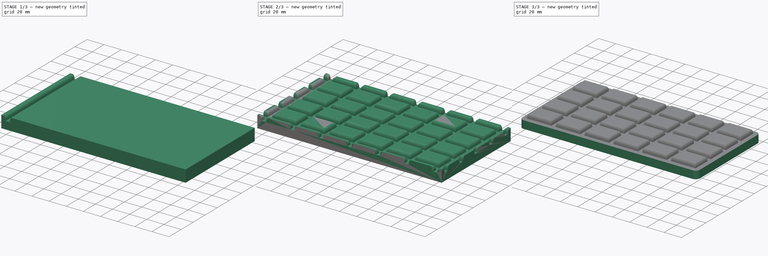
[diagram: build sequence overview — one tinted view per stage of 3, left to right]
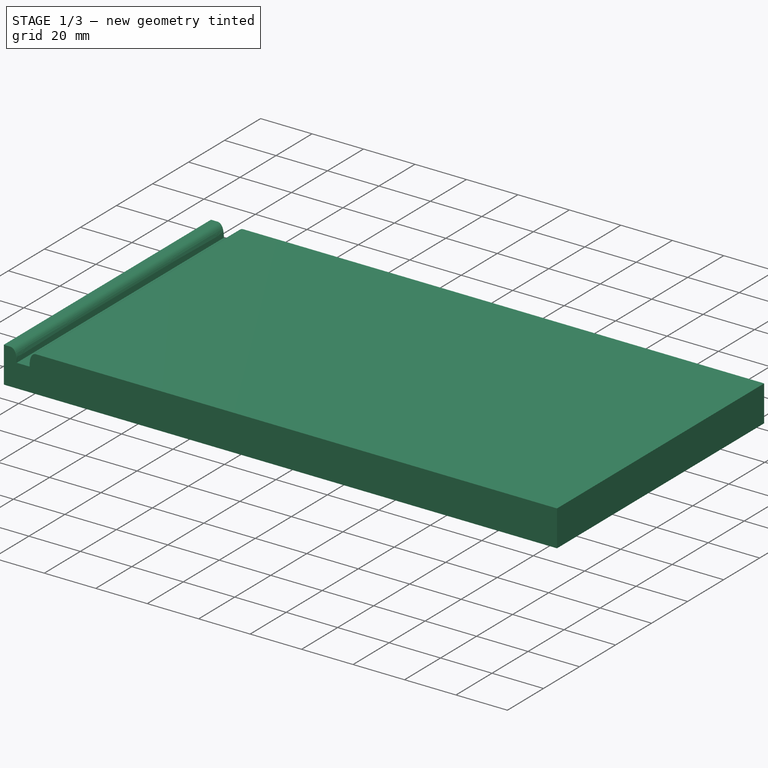
[diagram: stage 1 of 3 — iso view after this stage's code; geometry added in this stage tinted green]
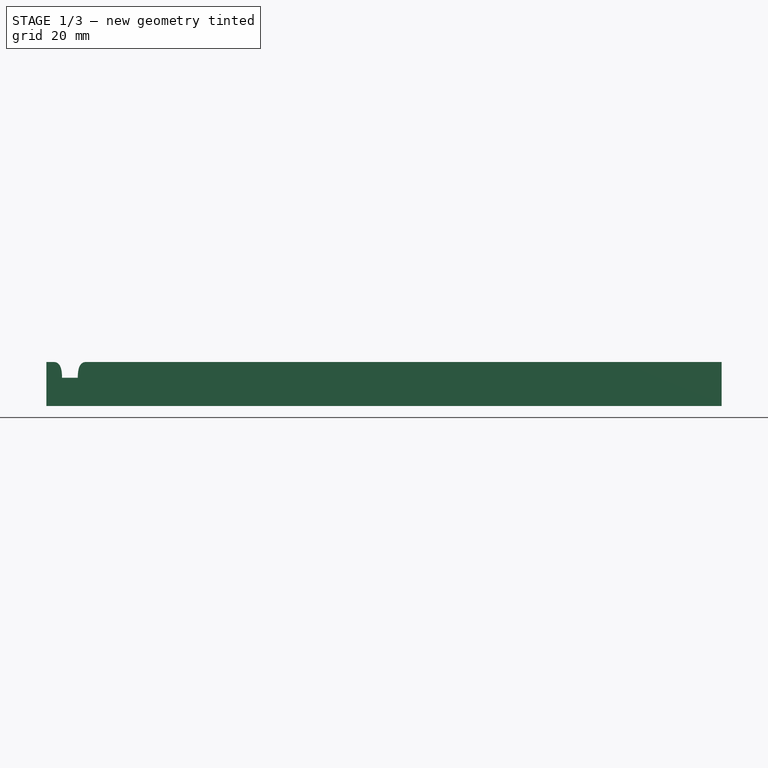
[diagram: stage 1 of 3 — front view after this stage's code; geometry added in this stage tinted green]
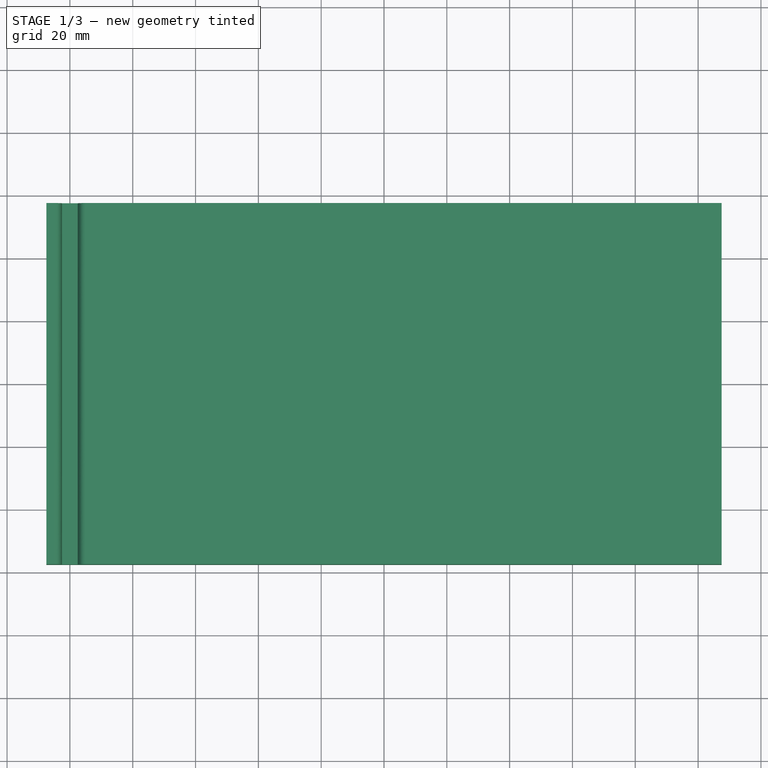
[diagram: stage 1 of 3 — top view after this stage's code; geometry added in this stage tinted green]
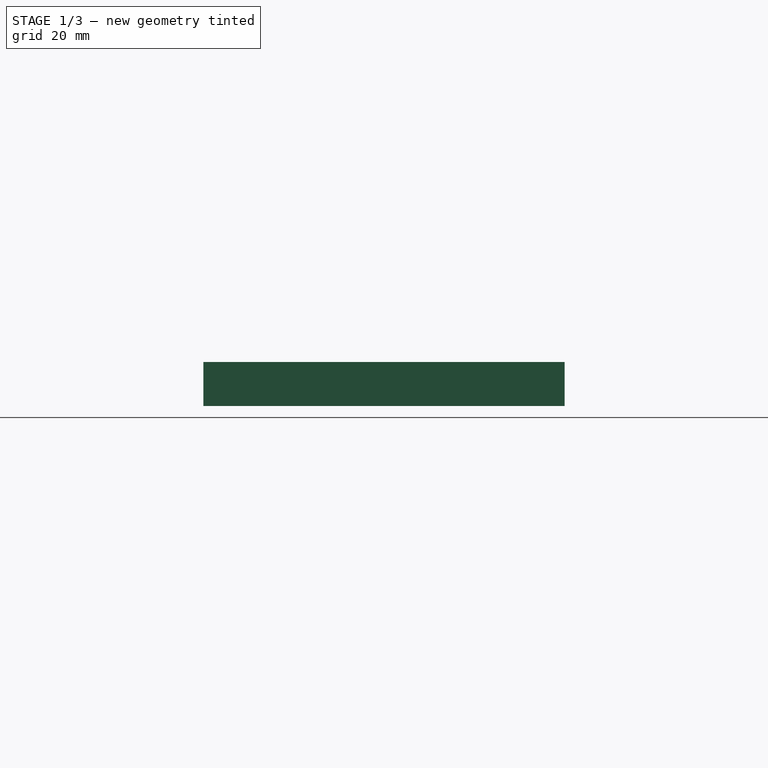
[diagram: stage 1 of 3 — right view after this stage's code; geometry added in this stage tinted green]
FCSTD DOCUMENT  (FreeCAD 0.21R33771 (Git))
Label: parametric_chocolate_bar
License: All rights reserved
LicenseURL: https://en.wikipedia.org/wiki/All_rights_reserved
objects: Sketcher::SketchObject×4, PartDesign::Pocket×3, PartDesign::LinearPattern×2, Spreadsheet::Sheet×1, PartDesign::Pad×1, PartDesign::Fillet×1, PartDesign::Body×1
note: 17 computed .brp shape members not serialized (recipe doc carries the construction recipe); baked Part::Feature solids carry a one-line shape summary decoded from their .brp

FEATURE [Spreadsheet::Sheet] Spreadsheet  label="$params"
  cells = A1='name; B1='value; A2='width; B2(width)=100; A3='length; B3(length)=200; A4='depth; B4(depth)=14; A5='offset_sides; B5(offset_sides)=5; A6='gap_depth; B6(gap_depth)=5; A7='gap_rounding_dist; B7(gap_rounding_distance)=0.1; A8='gap_distance; B8(gap_distance)=5; A9='inset_depth; B9(inset_depth)=2; A10='pieces_y; B10(pieces_x)=6; A11='pieces_x; B11(pieces_y)=4
FEATURE [Sketcher::SketchObject] Sketch  label="MainBody Base Pad Sketch"
  FullyConstrained = true
  MapMode = 5
  Support = -> [XY_Plane]
  expr: Constraints[10] = <<$params>>.length + (<<$params>>.offset_sides + <<$params>>.gap_distance / 2) * 2
  expr: Constraints[9] = <<$params>>.width + (<<$params>>.offset_sides + <<$params>>.gap_distance / 2) * 2
  sketch-geometry (4):
    g0: LineSegment StartX=-107.5 StartY=-57.5 StartZ=0 EndX=107.5 EndY=-57.5 EndZ=0
    g1: LineSegment StartX=107.5 StartY=-57.5 StartZ=0 EndX=107.5 EndY=57.5 EndZ=0
    g2: LineSegment StartX=107.5 StartY=57.5 StartZ=0 EndX=-107.5 EndY=57.5 EndZ=0
    g3: LineSegment StartX=-107.5 StartY=57.5 StartZ=0 EndX=-107.5 EndY=-57.5 EndZ=0
  constraints (11):
    c: Coincident(g0,g1)
    c: Coincident(g1,g2)
    c: Coincident(g2,g3)
    c: Coincident(g3,g0)
    c: Horizontal(g0)
    c: Horizontal(g2)
    c: Vertical(g1)
    c: Vertical(g3)
    c: Symmetric(g1,g0,g-1)
    c: DistanceY(g3,g3) = 115
    c: DistanceX(g2,g2) = 215
FEATURE [PartDesign::Pad] Pad  label="MainBody Base Pad"
  Direction = (0,0,1)
  Length = 14
  Length2 = 10
  Profile = -> Sketch
  ReferenceAxis = -> Sketch [N_Axis]
  Type = 0
  expr: Length = <<$params>>.depth
FEATURE [Sketcher::SketchObject] Sketch001  label="MainBody Horizontal Cut Sketch"
  FullyConstrained = false
  MapMode = 5
  Placement = pos=(0,-57.5,0) rot=(1,0,0;1.5708rad)
  Support = -> [Pad]
  expr: Constraints[12] = <<$params>>.gap_distance
  expr: Constraints[40] = <<$params>>.gap_rounding_distance
  expr: Constraints[47] = <<$params>>.depth
  expr: Constraints[48] = <<$params>>.length / 2
  expr: Constraints[6] = Spreadsheet.gap_depth
  sketch-geometry (22):
    g0: LineSegment StartX=-100 StartY=14 StartZ=0 EndX=-100 EndY=9 EndZ=0
    g1: LineSegment StartX=-100 StartY=14 StartZ=0 EndX=-95 EndY=14 EndZ=0
    g2: LineSegment StartX=-100 StartY=14 StartZ=0 EndX=-105 EndY=14 EndZ=0
    g3: LineSegment StartX=-100 StartY=9 StartZ=0 EndX=-97.5 EndY=9 EndZ=0
    g4: LineSegment StartX=-100 StartY=9 StartZ=0 EndX=-102.5 EndY=9 EndZ=0
    g5: Circle CenterX=-102.5 CenterY=9 CenterZ=0 NormalX=0 NormalY=0 NormalZ=1 AngleXU=0 Radius=1
    g6: Circle CenterX=-102.5 CenterY=13.9 CenterZ=0 NormalX=0 NormalY=0 NormalZ=1 AngleXU=0 Radius=1
    g7: Circle CenterX=-105 CenterY=14 CenterZ=0 NormalX=0 NormalY=0 NormalZ=1 AngleXU=0 Radius=1
    g8: BSplineCurve PolesCount=3 KnotsCount=2 Degree=2 IsPeriodic=0
    g9: GeomPoint X=-102.5 Y=9 Z=0
    g10: GeomPoint X=-105 Y=14 Z=0
    g11: Circle CenterX=-97.5 CenterY=9 CenterZ=0 NormalX=0 NormalY=0 NormalZ=1 AngleXU=0 Radius=1
    g12: Circle CenterX=-97.5 CenterY=13.9 CenterZ=0 NormalX=0 NormalY=0 NormalZ=1 AngleXU=0 Radius=1
    g13: Circle CenterX=-95 CenterY=14 CenterZ=0 NormalX=0 NormalY=0 NormalZ=1 AngleXU=0 Radius=1
    g14: BSplineCurve PolesCount=3 KnotsCount=2 Degree=2 IsPeriodic=0
    g15: GeomPoint X=-97.5 Y=9 Z=0
    g16: GeomPoint X=-95 Y=14 Z=0
    g17: GeomPoint X=-100 Y=13.9 Z=0
    g18: LineSegment StartX=-100 StartY=13.9 StartZ=0 EndX=-102.5 EndY=13.9 EndZ=0
    g19: LineSegment StartX=-97.5 StartY=13.9 StartZ=0 EndX=-100 EndY=13.9 EndZ=0
    g20: LineSegment StartX=0 StartY=0 StartZ=0 EndX=-100 EndY=0 EndZ=0
    g21: LineSegment StartX=-100 StartY=0 StartZ=0 EndX=-100 EndY=14 EndZ=0
  constraints (49):
    c: Vertical(g0)
    c: Horizontal(g1)
    c: Coincident(g2,g0)
    c: Horizontal(g2)
    c: Equal(g0,g1)
    c: Equal(g1,g2)
    c: DistanceY(g0,g0) = 5
    c: Coincident(g3,g0)
    c: Horizontal(g3)
    c: Coincident(g4,g0)
    c: Horizontal(g4)
    c: Equal(g4,g3)
    c: DistanceX(g4,g3) = 5
    c: Coincident(g8,g4)
    c: Equal(g5,g6)
    c: Equal(g5,g7)
    c: Coincident(g8,g2)
    c: InternalAlignment(g5,g8)
    c: InternalAlignment(g6,g8)
    c: InternalAlignment(g7,g8)
    c: InternalAlignment(g9,g8)
    c: InternalAlignment(g10,g8)
    c: Coincident(g14,g3)
    c: Equal(g11,g12)
    c: Equal(g11,g13)
    c: Coincident(g14,g1)
    c: InternalAlignment(g11,g14)
    c: InternalAlignment(g12,g14)
    c: InternalAlignment(g13,g14)
    c: InternalAlignment(g15,g14)
    c: InternalAlignment(g16,g14)
    c: PointOnObject(g17,g0)
    c: Coincident(g18,g17)
    c: Coincident(g18,g6)
    c: Horizontal(g18)
    c: Coincident(g19,g12)
    c: Coincident(g19,g17)
    c: Horizontal(g19)
    c: Equal(g18,g4)
    c: Equal(g19,g3)
    c: DistanceY(g17,g1) = 0.1
    c: Coincident(g2,g1)
    c: Coincident(g20,g-1)
    c: Horizontal(g20)
    c: Coincident(g21,g20)
    c: Coincident(g21,g1)
    c: Vertical(g21)
    c: DistanceY(g21,g21) = 14
    c: DistanceX(g20,g20) = 100
FEATURE [PartDesign::Pocket] Pocket  label="MainBody Horizontal Cut"
  BaseFeature = -> Pad
  Direction = (0,1,-2e-16)
  Length = 5
  Length2 = 5
  Profile = -> Sketch001
  ReferenceAxis = -> Sketch001 [N_Axis]
  Refine = true
  Type = 2
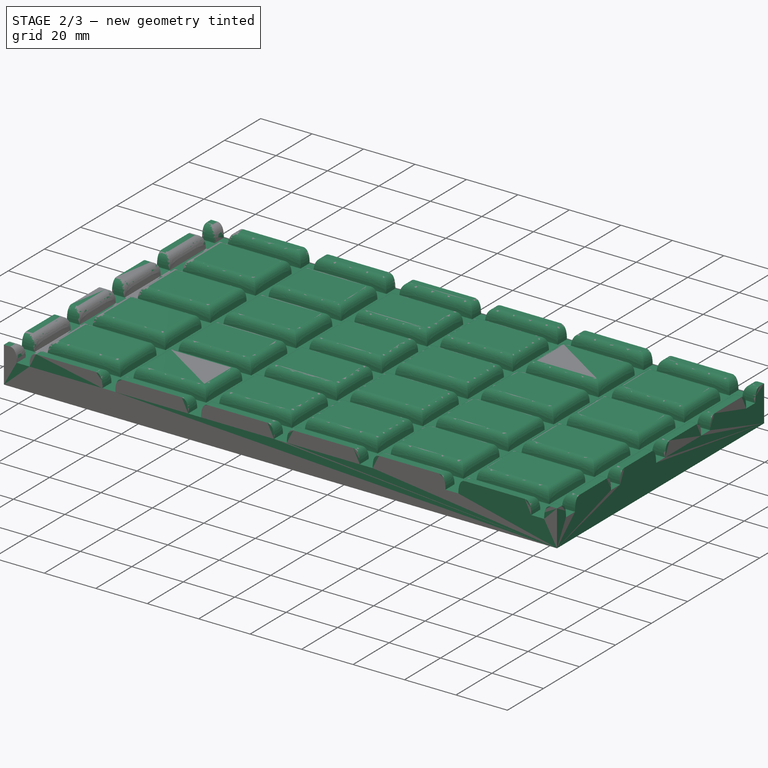
[diagram: stage 2 of 3 — iso view after this stage's code; geometry added in this stage tinted green]
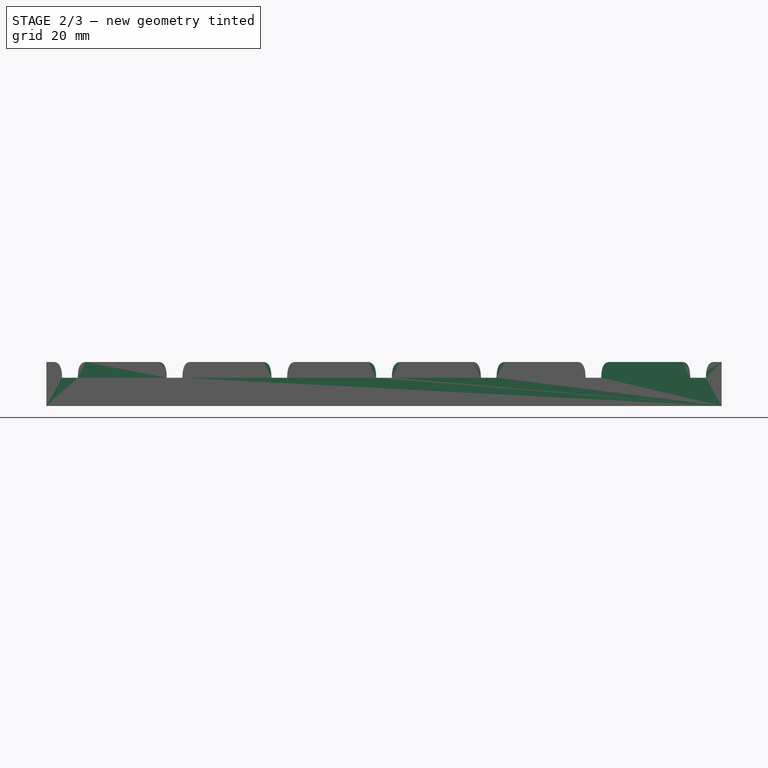
[diagram: stage 2 of 3 — front view after this stage's code; geometry added in this stage tinted green]
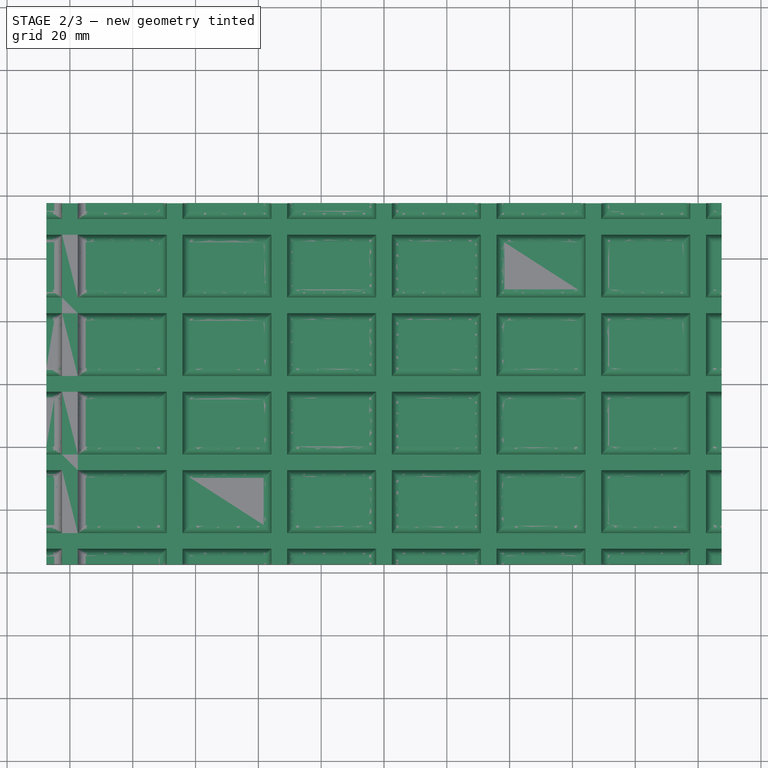
[diagram: stage 2 of 3 — top view after this stage's code; geometry added in this stage tinted green]
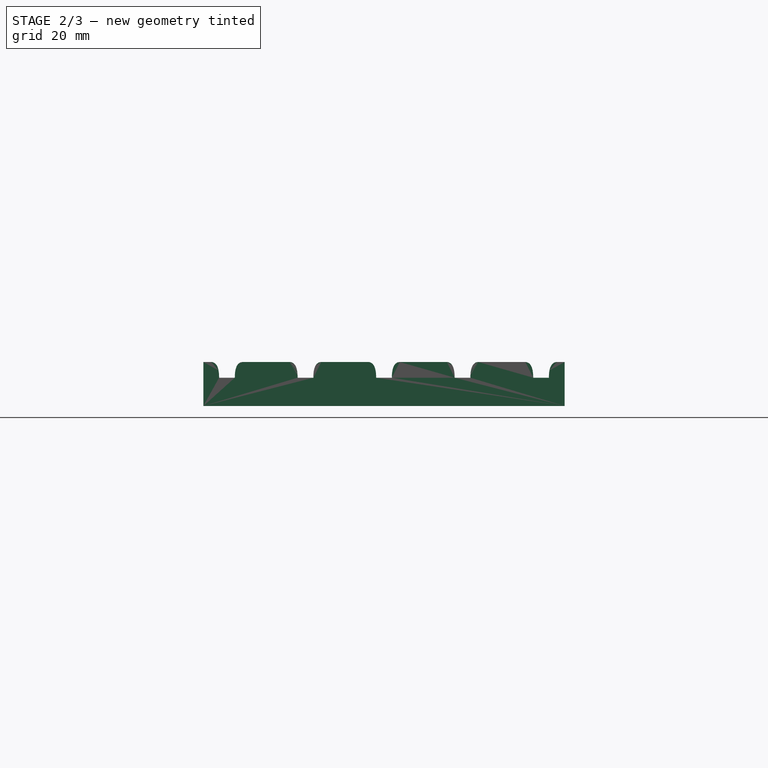
[diagram: stage 2 of 3 — right view after this stage's code; geometry added in this stage tinted green]
FEATURE [PartDesign::LinearPattern] LinearPattern  label="MainBody Horizontal Cut Repeater"
  BaseFeature = -> Pocket
  Direction = -> Sketch001 [H_Axis]
  Length = 200
  Occurrences = 7
  Originals = -> [Pocket]
  expr: Length = <<$params>>.length
  expr: Occurrences = <<$params>>.pieces_x + 1
FEATURE [Sketcher::SketchObject] Sketch002  label="MainBody Vertical Cut Sketch"
  FullyConstrained = true
  MapMode = 5
  Placement = pos=(107.5,0,0) rot=(0.57735,0.57735,0.57735;2.0944rad)
  Support = -> [LinearPattern]
  expr: Constraints[38] = <<$params>>.gap_distance
  expr: Constraints[39] = <<$params>>.gap_rounding_distance
  expr: Constraints[46] = <<$params>>.gap_distance
  expr: Constraints[47] = <<$params>>.gap_distance
  expr: Constraints[4] = <<$params>>.width / 2
  expr: Constraints[5] = <<$params>>.depth
  sketch-geometry (20):
    g0: LineSegment StartX=0 StartY=0 StartZ=0 EndX=-50 EndY=0 EndZ=0
    g1: LineSegment StartX=-50 StartY=0 StartZ=0 EndX=-50 EndY=14 EndZ=0
    g2: LineSegment StartX=-50 StartY=9 StartZ=0 EndX=-52.5 EndY=9 EndZ=0
    g3: LineSegment StartX=-50 StartY=9 StartZ=0 EndX=-47.5 EndY=9 EndZ=0
    g4: Circle CenterX=-52.5 CenterY=9 CenterZ=0 NormalX=0 NormalY=0 NormalZ=1 AngleXU=0 Radius=1
    g5: Circle CenterX=-52.5 CenterY=13.9 CenterZ=0 NormalX=0 NormalY=0 NormalZ=1 AngleXU=0 Radius=1
    g6: Circle CenterX=-55 CenterY=14 CenterZ=0 NormalX=0 NormalY=0 NormalZ=1 AngleXU=0 Radius=1
    g7: BSplineCurve PolesCount=3 KnotsCount=2 Degree=2 IsPeriodic=0
    g8: GeomPoint X=-52.5 Y=9 Z=0
    g9: GeomPoint X=-55 Y=14 Z=0
    g10: Circle CenterX=-47.5 CenterY=9 CenterZ=0 NormalX=0 NormalY=0 NormalZ=1 AngleXU=0 Radius=1
    g11: Circle CenterX=-47.5 CenterY=13.9 CenterZ=0 NormalX=0 NormalY=0 NormalZ=1 AngleXU=0 Radius=1
    g12: Circle CenterX=-45 CenterY=14 CenterZ=0 NormalX=0 NormalY=0 NormalZ=1 AngleXU=0 Radius=1
    g13: BSplineCurve PolesCount=3 KnotsCount=2 Degree=2 IsPeriodic=0
    g14: GeomPoint X=-47.5 Y=9 Z=0
    g15: GeomPoint X=-45 Y=14 Z=0
    g16: LineSegment StartX=-55 StartY=14 StartZ=0 EndX=-50 EndY=14 EndZ=0
    g17: LineSegment StartX=-50 StartY=14 StartZ=0 EndX=-45 EndY=14 EndZ=0
    g18: LineSegment StartX=-47.5 StartY=13.9 StartZ=0 EndX=-50 EndY=13.9 EndZ=0
    g19: LineSegment StartX=-50 StartY=13.9 StartZ=0 EndX=-52.5 EndY=13.9 EndZ=0
  constraints (48):
    c: Coincident(g0,g-1)
    c: Horizontal(g0)
    c: Coincident(g1,g0)
    c: Vertical(g1)
    c: DistanceX(g0,g0) = 50
    c: DistanceY(g1,g1) = 14
    c: PointOnObject(g2,g1)
    c: Horizontal(g2)
    c: Coincident(g3,g2)
    c: Horizontal(g3)
    c: Weight(g4) = 1
    c: Coincident(g7,g2)
    c: Equal(g4,g5)
    c: Equal(g4,g6)
    c: InternalAlignment(g4,g7)
    c: InternalAlignment(g5,g7)
    c: InternalAlignment(g6,g7)
    c: InternalAlignment(g8,g7)
    c: InternalAlignment(g9,g7)
    c: Weight(g10) = 1
    c: Coincident(g13,g3)
    c: Equal(g10,g11)
    c: Equal(g10,g12)
    c: InternalAlignment(g10,g13)
    c: InternalAlignment(g11,g13)
    c: InternalAlignment(g12,g13)
    c: InternalAlignment(g14,g13)
    c: InternalAlignment(g15,g13)
    c: Coincident(g16,g6)
    c: Coincident(g16,g1)
    c: Coincident(g17,g16)
    c: Coincident(g17,g12)
    c: Horizontal(g16)
    c: Horizontal(g17)
    c: Coincident(g18,g11)
    c: PointOnObject(g18,g1)
    c: Horizontal(g18)
    c: Equal(g3,g2)
    c: DistanceX(g2,g3) = 5
    c: DistanceY(g18,g16) = 0.1
    c: Coincident(g19,g18)
    c: Coincident(g19,g5)
    c: Horizontal(g19)
    c: Equal(g19,g18)
    c: Equal(g19,g2)
    c: Equal(g17,g16)
    c: DistanceY(g2,g16) = 5
    c: DistanceX(g16,g16) = 5
FEATURE [PartDesign::Pocket] Pocket001  label="MainBody Vertical Cut"
  BaseFeature = -> LinearPattern
  Direction = (-1,0,0)
  Length = 5
  Length2 = 5
  Profile = -> Sketch002
  ReferenceAxis = -> Sketch002 [N_Axis]
  Refine = true
  Type = 1
FEATURE [PartDesign::LinearPattern] LinearPattern001  label="MainBody Vertical Cut Repeater"
  BaseFeature = -> Pocket001
  Direction = -> Sketch002 [H_Axis]
  Length = 100
  Occurrences = 5
  Originals = -> [Pocket001]
  Refine = true
  expr: Length = <<$params>>.width
  expr: Occurrences = <<$params>>.pieces_y + 1
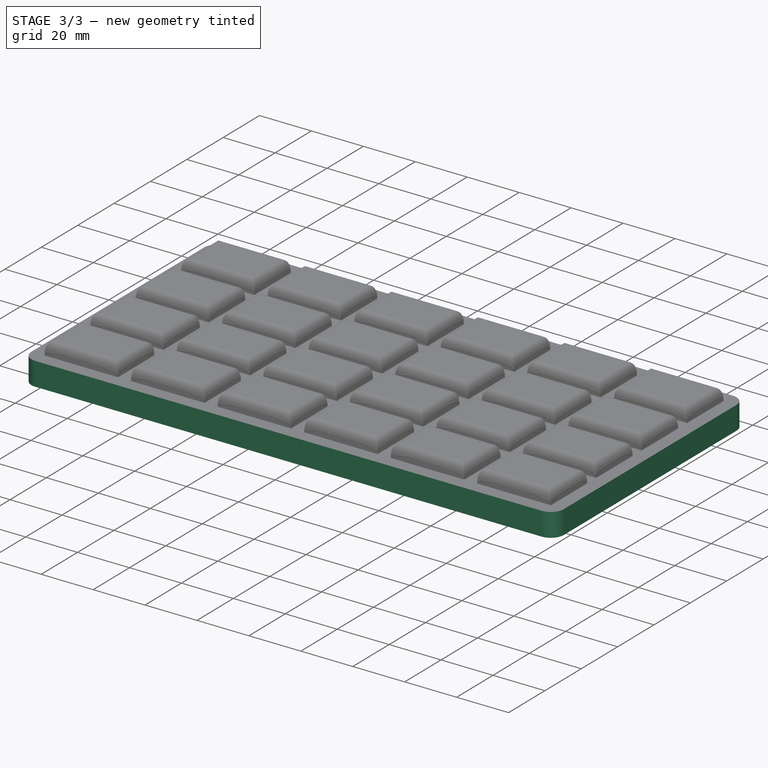
[diagram: stage 3 of 3 — iso view after this stage's code; geometry added in this stage tinted green]
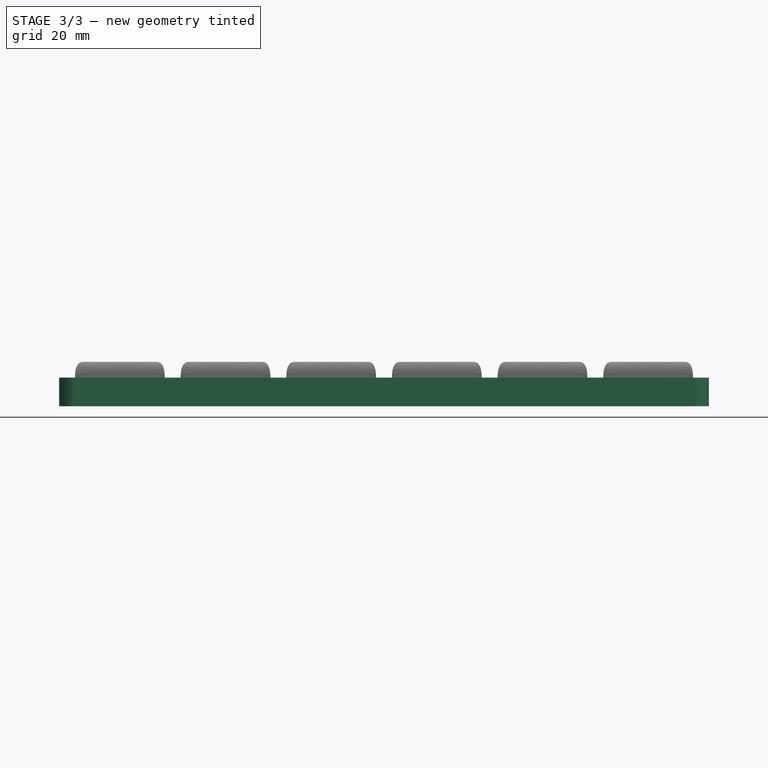
[diagram: stage 3 of 3 — front view after this stage's code; geometry added in this stage tinted green]
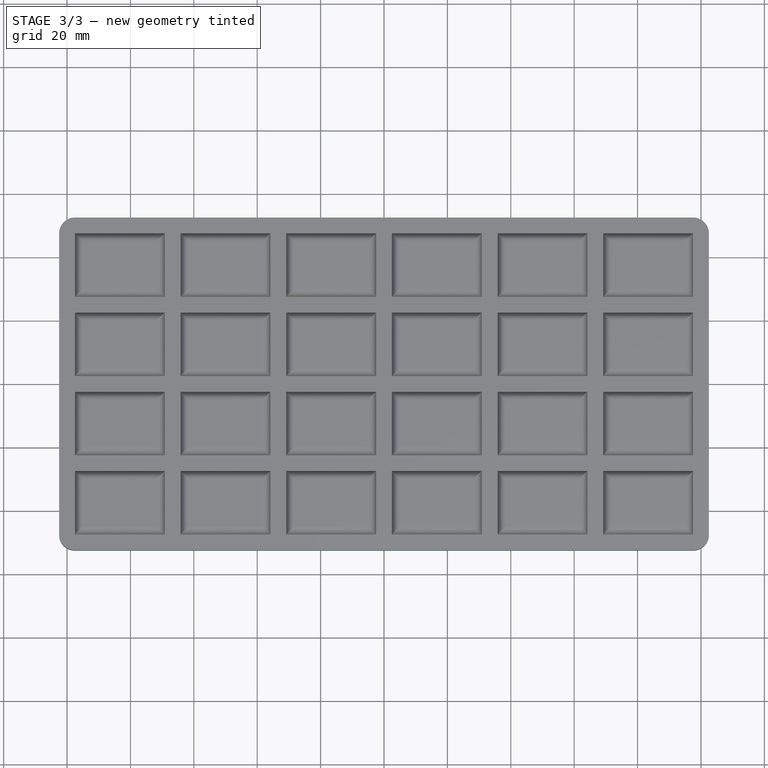
[diagram: stage 3 of 3 — top view after this stage's code; geometry added in this stage tinted green]
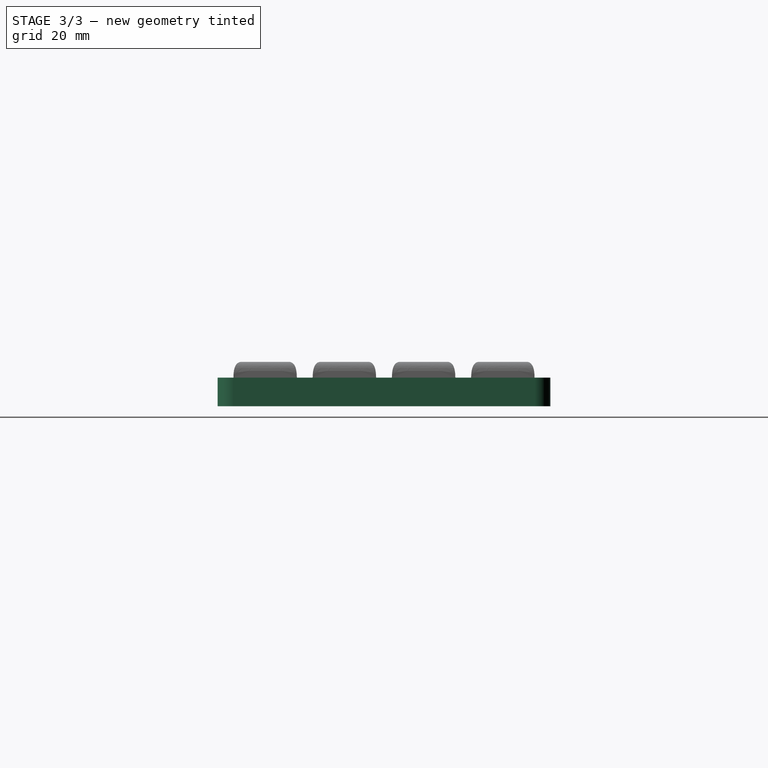
[diagram: stage 3 of 3 — right view after this stage's code; geometry added in this stage tinted green]
FEATURE [Sketcher::SketchObject] Sketch003  label="MainBody Gap Cut Sketch"
  ExternalGeometry = -> [Sketch]
  FullyConstrained = true
  MapMode = 5
  Placement = pos=(0,0,0) rot=(1,0,0;3.14159rad)
  Support = -> [Pad]
  expr: Constraints[10] = <<$params>>.length + <<$params>>.gap_distance
  expr: Constraints[9] = <<$params>>.width + <<$params>>.gap_distance
  sketch-geometry (8):
    g0: LineSegment StartX=-102.5 StartY=52.5 StartZ=0 EndX=102.5 EndY=52.5 EndZ=0
    g1: LineSegment StartX=102.5 StartY=52.5 StartZ=0 EndX=102.5 EndY=-52.5 EndZ=0
    g2: LineSegment StartX=102.5 StartY=-52.5 StartZ=0 EndX=-102.5 EndY=-52.5 EndZ=0
    g3: LineSegment StartX=-102.5 StartY=-52.5 StartZ=0 EndX=-102.5 EndY=52.5 EndZ=0
    g4: LineSegment StartX=-107.5 StartY=57.5 StartZ=0 EndX=107.5 EndY=57.5 EndZ=0
    g5: LineSegment StartX=107.5 StartY=57.5 StartZ=0 EndX=107.5 EndY=-57.5 EndZ=0
    g6: LineSegment StartX=107.5 StartY=-57.5 StartZ=0 EndX=-107.5 EndY=-57.5 EndZ=0
    g7: LineSegment StartX=-107.5 StartY=-57.5 StartZ=0 EndX=-107.5 EndY=57.5 EndZ=0
  constraints (21):
    c: Coincident(g0,g1)
    c: Coincident(g1,g2)
    c: Coincident(g2,g3)
    c: Coincident(g3,g0)
    c: Horizontal(g0)
    c: Horizontal(g2)
    c: Vertical(g1)
    c: Vertical(g3)
    c: Symmetric(g2,g0,g-1)
    c: DistanceY(g3,g3) = 105
    c: DistanceX(g0,g0) = 205
    c: Coincident(g4,g5)
    c: Coincident(g5,g6)
    c: Coincident(g6,g7)
    c: Coincident(g7,g4)
    c: Horizontal(g4)
    c: Horizontal(g6)
    c: Vertical(g5)
    c: Vertical(g7)
    c: Symmetric(g4,g5,g-1)
    c: Coincident(g-4,g5)
FEATURE [PartDesign::Pocket] Pocket002  label="MainBody Gap Cut"
  BaseFeature = -> LinearPattern001
  Direction = (0,0,1)
  Length = 5
  Length2 = 5
  Profile = -> Sketch003
  ReferenceAxis = -> Sketch003 [N_Axis]
  Type = 1
FEATURE [PartDesign::Fillet] Fillet
  Base = -> Pocket002 [Edge39,Edge5,Edge15,Edge29]
  BaseFeature = -> Pocket002
  Radius = 5
  SupportTransform = false
  UseAllEdges = false
FEATURE [PartDesign::Body] Body  label="MainBody"
  Group = -> [Sketch,Pad,Sketch001,Pocket,LinearPattern,Sketch002,Pocket001,LinearPattern001,Sketch003,Pocket002,Fillet]
  Origin = -> Origin
  Tip = -> Fillet
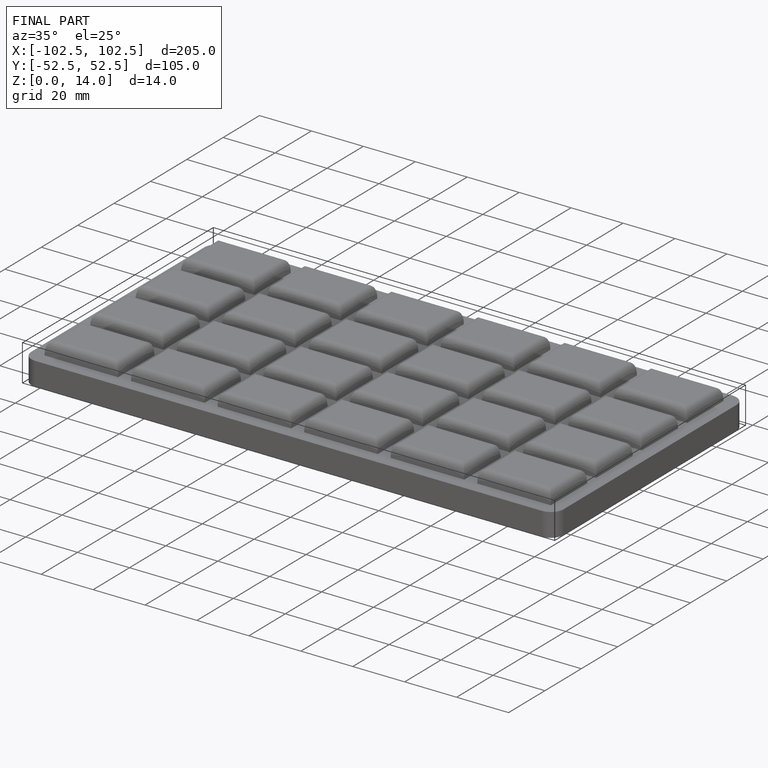
[diagram: finished part — iso view with bounding-box wireframe]
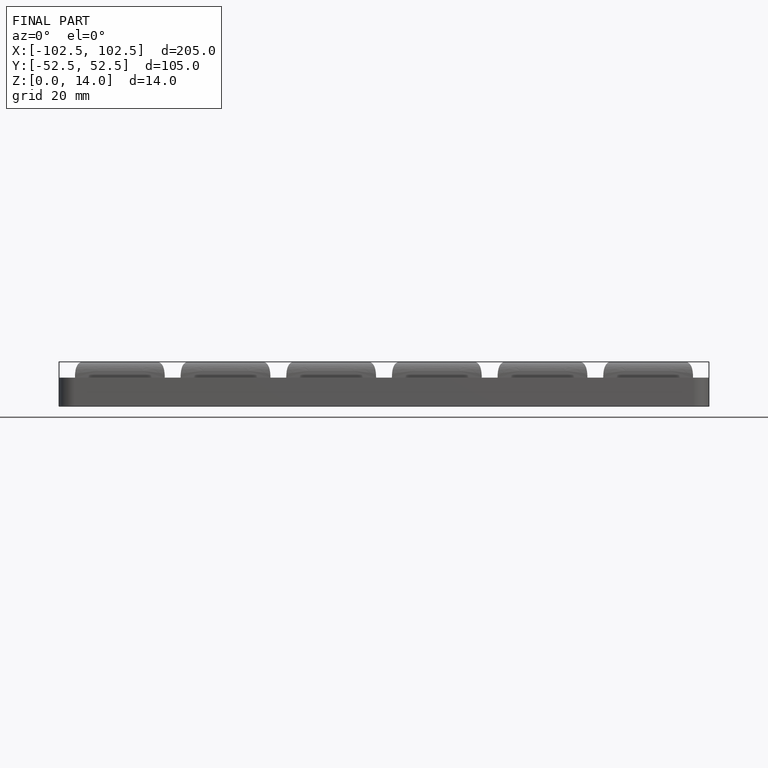
[diagram: finished part — front view with bounding-box wireframe]
